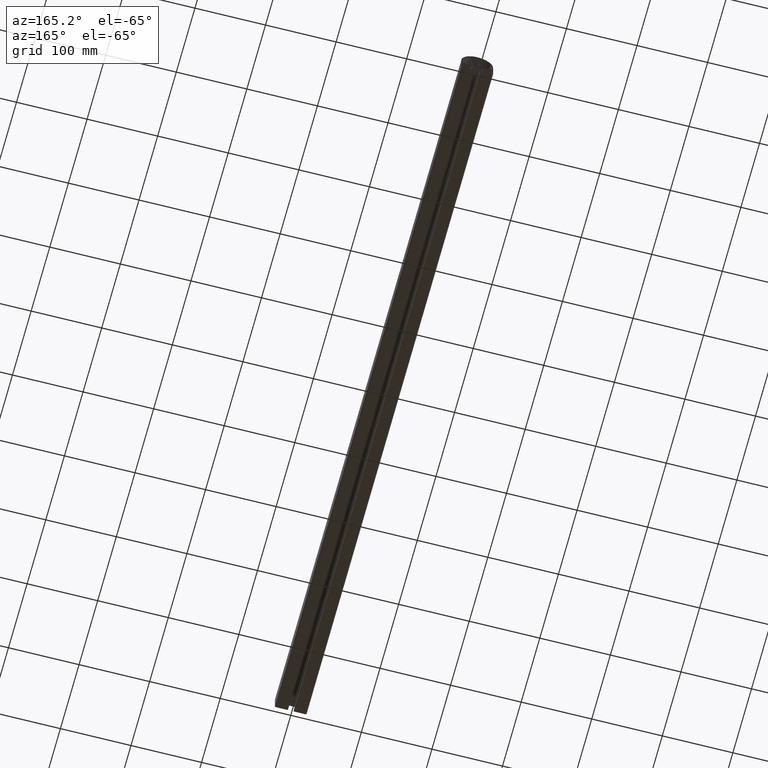
[diagram: clean part render]
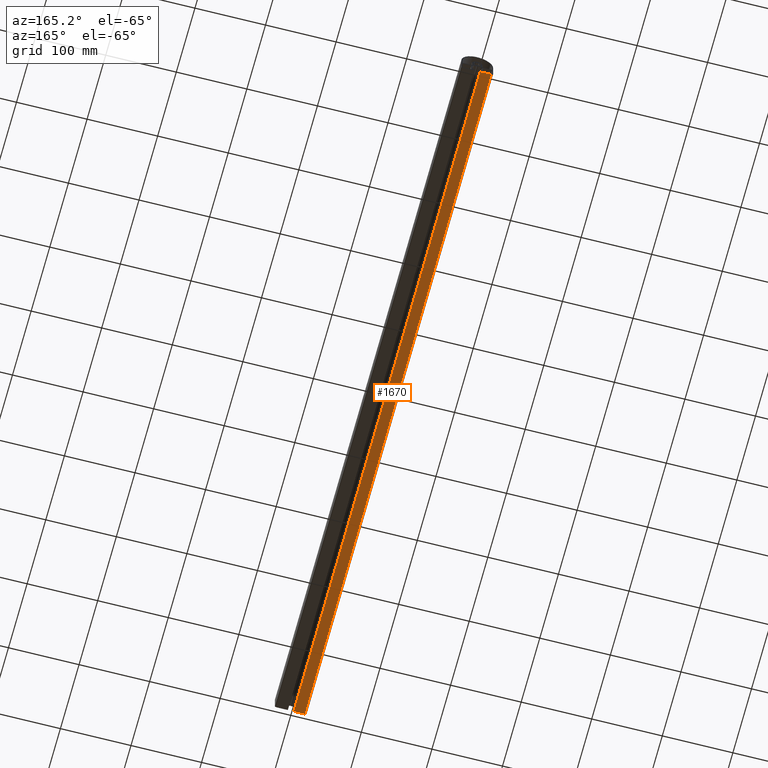
[diagram: same view with one face highlighted and labeled with its STEP entity id]
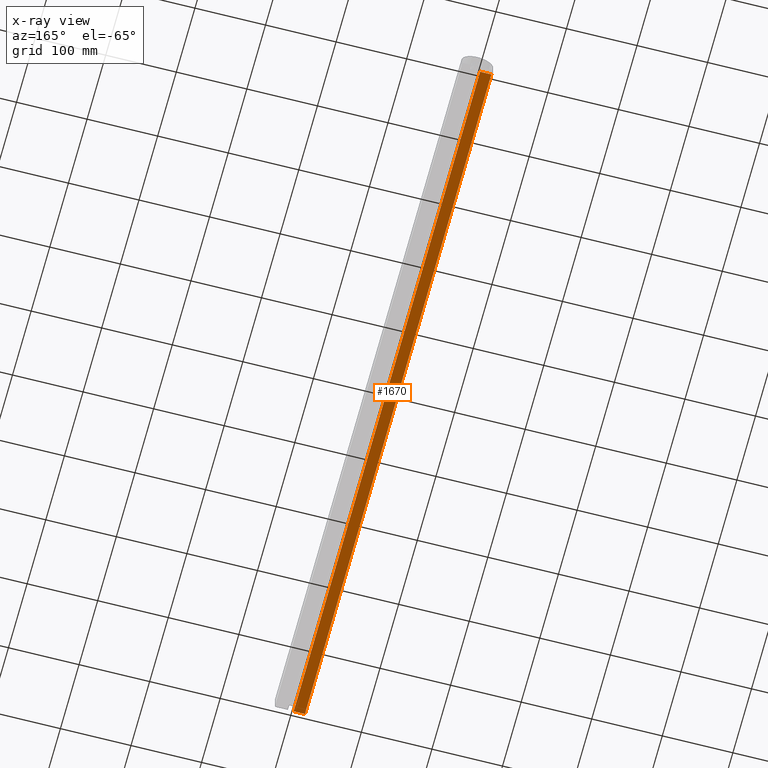
[diagram: x-ray of the same camera — body ghosted, the highlighted face saturated]
A machine part, auxiliary view. The second image highlights one B-rep face of the part: STEP entity #1670.
The next image is the same camera in x-ray: the body ghosted, the highlighted face saturated — about 0% of this face is hidden behind the body in this view.
In plain terms, the highlighted planar face has unit normal (0, 0, -1).
Its self-contained STEP definition (entity closure, byte-faithful):
#46=PLANE('',#1863);
#128=FACE_OUTER_BOUND('',#213,.T.);
#213=EDGE_LOOP('',(#1326,#1327,#1328,#1329));
#352=LINE('',#2807,#507);
#353=LINE('',#2810,#508);
#354=LINE('',#2812,#509);
#355=LINE('',#2813,#510);
#507=VECTOR('',#2312,10.);
#508=VECTOR('',#2315,10.);
#509=VECTOR('',#2316,10.);
#510=VECTOR('',#2317,10.);
#777=VERTEX_POINT('',#2803);
#778=VERTEX_POINT('',#2805);
#779=VERTEX_POINT('',#2809);
#780=VERTEX_POINT('',#2811);
#1010=EDGE_CURVE('',#777,#778,#352,.T.);
#1011=EDGE_CURVE('',#777,#779,#353,.T.);
#1012=EDGE_CURVE('',#780,#778,#354,.T.);
#1013=EDGE_CURVE('',#779,#780,#355,.T.);
#1326=ORIENTED_EDGE('',*,*,#1011,.F.);
#1327=ORIENTED_EDGE('',*,*,#1010,.T.);
#1328=ORIENTED_EDGE('',*,*,#1012,.F.);
#1329=ORIENTED_EDGE('',*,*,#1013,.F.);
#1670=ADVANCED_FACE('',(#128),#46,.T.);
#1863=AXIS2_PLACEMENT_3D('',#2808,#2313,#2314);
#2312=DIRECTION('',(0.,1.,0.));
#2313=DIRECTION('center_axis',(0.,0.,-1.));
#2314=DIRECTION('ref_axis',(-1.,0.,0.));
#2315=DIRECTION('',(1.,0.,0.));
#2316=DIRECTION('',(-1.,0.,0.));
#2317=DIRECTION('',(0.,1.,0.));
#2803=CARTESIAN_POINT('',(-20.0033147971028,0.,-22.4900214575702));
#2805=CARTESIAN_POINT('',(-20.0033147971028,1000.,-22.4900214575702));
#2807=CARTESIAN_POINT('',(-20.0033147971028,0.,-22.4900214575702));
#2808=CARTESIAN_POINT('Origin',(-4.15077646263905,0.,-22.4900214575702));
#2809=CARTESIAN_POINT('',(-4.15077646263905,0.,-22.4900214575702));
#2810=CARTESIAN_POINT('',(-20.0033147971028,0.,-22.4900214575702));
#2811=CARTESIAN_POINT('',(-4.15077646263905,1000.,-22.4900214575702));
#2812=CARTESIAN_POINT('',(-20.0033147971028,1000.,-22.4900214575702));
#2813=CARTESIAN_POINT('',(-4.15077646263905,0.,-22.4900214575702));